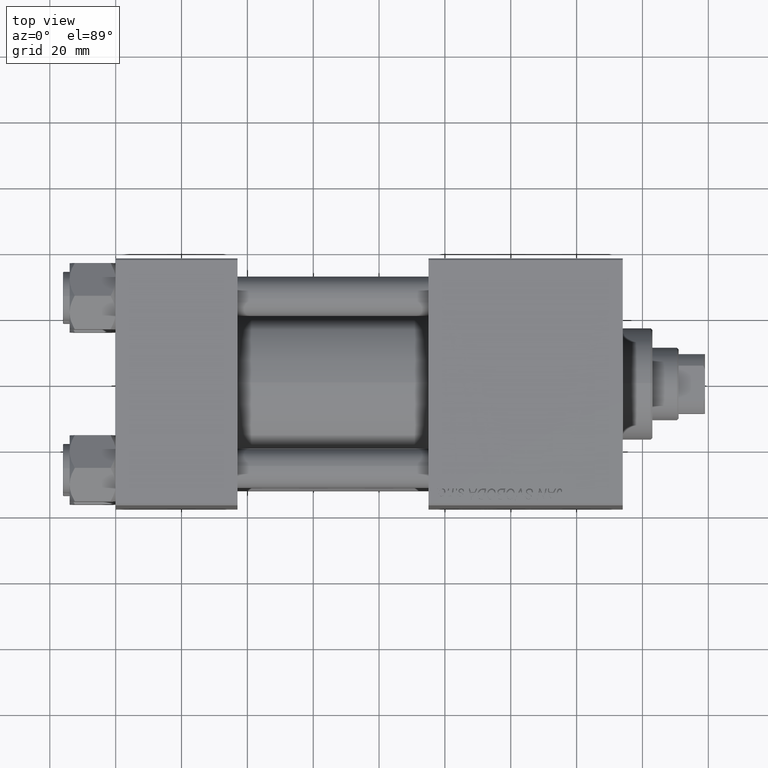
[diagram: clean part render]
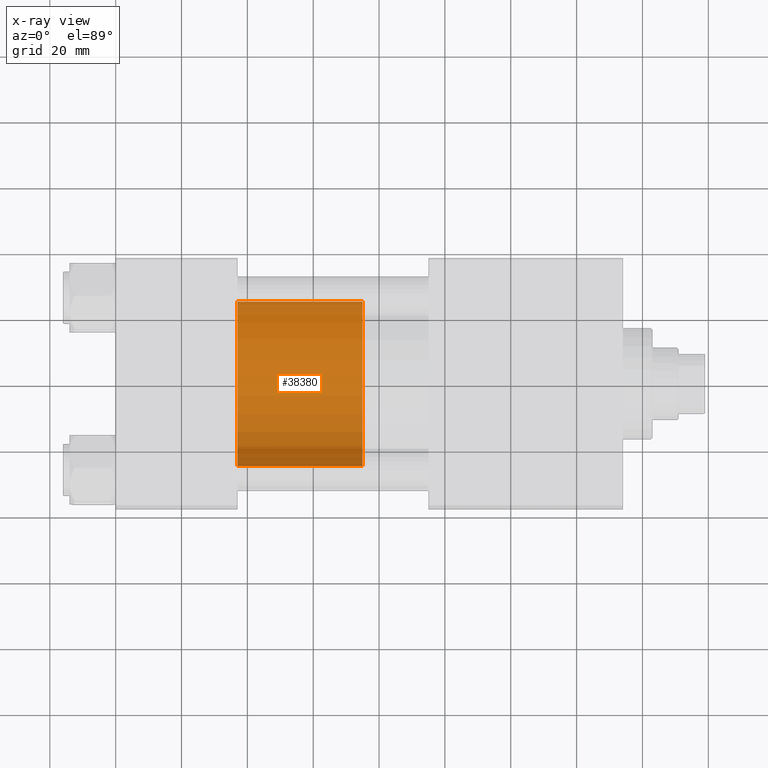
[diagram: x-ray — body ghosted, one internal face saturated and labeled with its STEP entity id]
A machine part, top view, then the same camera in x-ray: the body is ghosted and one INTERNAL B-rep face — a face not visible from any outside direction — is saturated and labeled: STEP entity #38380.
In plain terms, the highlighted cylindrical surface (partial cylindrical patch) has radius 25 mm, axis along (-1, 0, 0).
Its self-contained STEP definition (entity closure, byte-faithful):
#688 = VERTEX_POINT ( 'NONE', #41848 ) ;
#2084 = FACE_OUTER_BOUND ( 'NONE', #31559, .T. ) ;
#5187 = EDGE_CURVE ( 'NONE', #688, #19068, #17689, .T. ) ;
#5459 = VERTEX_POINT ( 'NONE', #18595 ) ;
#5900 = CYLINDRICAL_SURFACE ( 'NONE', #30437, 25.00000000000000000 ) ;
#7426 = AXIS2_PLACEMENT_3D ( 'NONE', #43956, #13396, #47536 ) ;
#8347 = AXIS2_PLACEMENT_3D ( 'NONE', #22426, #18351, #50156 ) ;
#11092 = EDGE_CURVE ( 'NONE', #19068, #5459, #27843, .T. ) ;
#11178 = ORIENTED_EDGE ( 'NONE', *, *, #44479, .F. ) ;
#12534 = DIRECTION ( 'NONE',  ( -0.000000000000000000, -0.000000000000000000, -1.000000000000000000 ) ) ;
#13396 = DIRECTION ( 'NONE',  ( 0.000000000000000000, 0.000000000000000000, 1.000000000000000000 ) ) ;
#13824 = VECTOR ( 'NONE', #26088, 1000.000000000000000 ) ;
#17689 = LINE ( 'NONE', #41600, #13824 ) ;
#18351 = DIRECTION ( 'NONE',  ( 0.000000000000000000, 0.000000000000000000, 1.000000000000000000 ) ) ;
#18440 = CARTESIAN_POINT ( 'NONE',  ( -25.00000000000000000, 0.000000000000000000, 38.00000000000000000 ) ) ;
#18595 = CARTESIAN_POINT ( 'NONE',  ( -25.00000000000000000, 0.000000000000000000, 0.000000000000000000 ) ) ;
#19068 = VERTEX_POINT ( 'NONE', #46413 ) ;
#19080 = VERTEX_POINT ( 'NONE', #18440 ) ;
#21686 = CARTESIAN_POINT ( 'NONE',  ( 0.000000000000000000, 0.000000000000000000, 38.00000000000000000 ) ) ;
#22426 = CARTESIAN_POINT ( 'NONE',  ( 0.000000000000000000, 0.000000000000000000, 0.000000000000000000 ) ) ;
#25743 = DIRECTION ( 'NONE',  ( -1.000000000000000000, 0.000000000000000000, 0.000000000000000000 ) ) ;
#25749 = ORIENTED_EDGE ( 'NONE', *, *, #36129, .F. ) ;
#26088 = DIRECTION ( 'NONE',  ( -0.000000000000000000, -0.000000000000000000, -1.000000000000000000 ) ) ;
#27843 = CIRCLE ( 'NONE', #8347, 25.00000000000000000 ) ;
#30437 = AXIS2_PLACEMENT_3D ( 'NONE', #21686, #37172, #25743 ) ;
#31559 = EDGE_LOOP ( 'NONE', ( #11178, #44267, #35589, #25749 ) ) ;
#31873 = LINE ( 'NONE', #47145, #36811 ) ;
#35589 = ORIENTED_EDGE ( 'NONE', *, *, #11092, .T. ) ;
#36129 = EDGE_CURVE ( 'NONE', #19080, #5459, #31873, .T. ) ;
#36811 = VECTOR ( 'NONE', #12534, 1000.000000000000000 ) ;
#37172 = DIRECTION ( 'NONE',  ( -0.000000000000000000, -0.000000000000000000, -1.000000000000000000 ) ) ;
#38380 = ADVANCED_FACE ( 'NONE', ( #2084 ), #5900, .T. ) ;
#39091 = CIRCLE ( 'NONE', #7426, 25.00000000000000000 ) ;
#41600 = CARTESIAN_POINT ( 'NONE',  ( 25.00000000000000000, 3.061616997868383043E-15, 38.00000000000000000 ) ) ;
#41848 = CARTESIAN_POINT ( 'NONE',  ( 25.00000000000000000, 3.061616997868383043E-15, 38.00000000000000000 ) ) ;
#43956 = CARTESIAN_POINT ( 'NONE',  ( 0.000000000000000000, 0.000000000000000000, 38.00000000000000000 ) ) ;
#44267 = ORIENTED_EDGE ( 'NONE', *, *, #5187, .T. ) ;
#44479 = EDGE_CURVE ( 'NONE', #688, #19080, #39091, .T. ) ;
#46413 = CARTESIAN_POINT ( 'NONE',  ( 25.00000000000000000, 3.061616997868383043E-15, 0.000000000000000000 ) ) ;
#47145 = CARTESIAN_POINT ( 'NONE',  ( -25.00000000000000000, 0.000000000000000000, 38.00000000000000000 ) ) ;
#47536 = DIRECTION ( 'NONE',  ( 1.000000000000000000, 0.000000000000000000, 0.000000000000000000 ) ) ;
#50156 = DIRECTION ( 'NONE',  ( 1.000000000000000000, 0.000000000000000000, 0.000000000000000000 ) ) ;